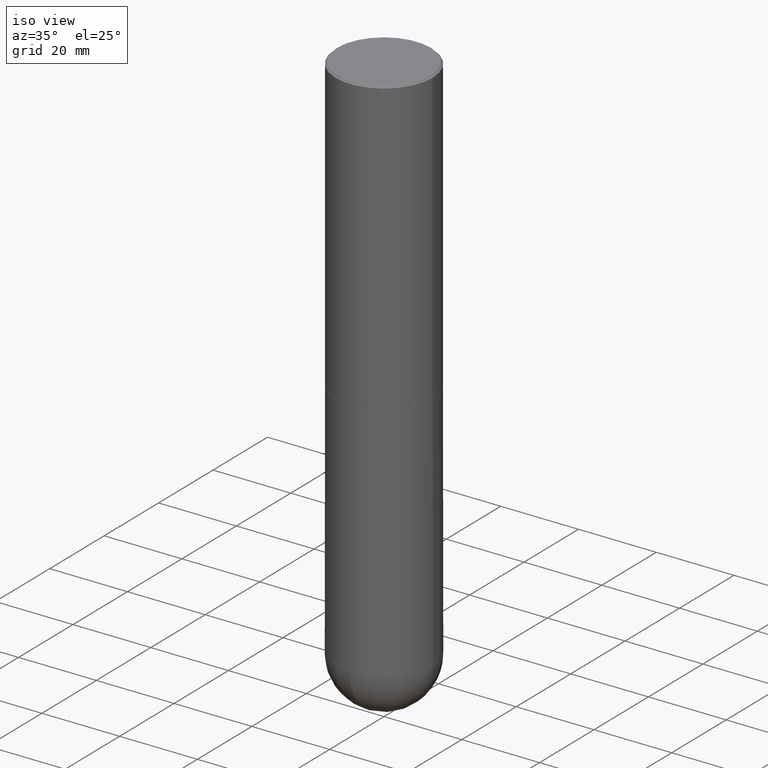
[diagram: clean part render]
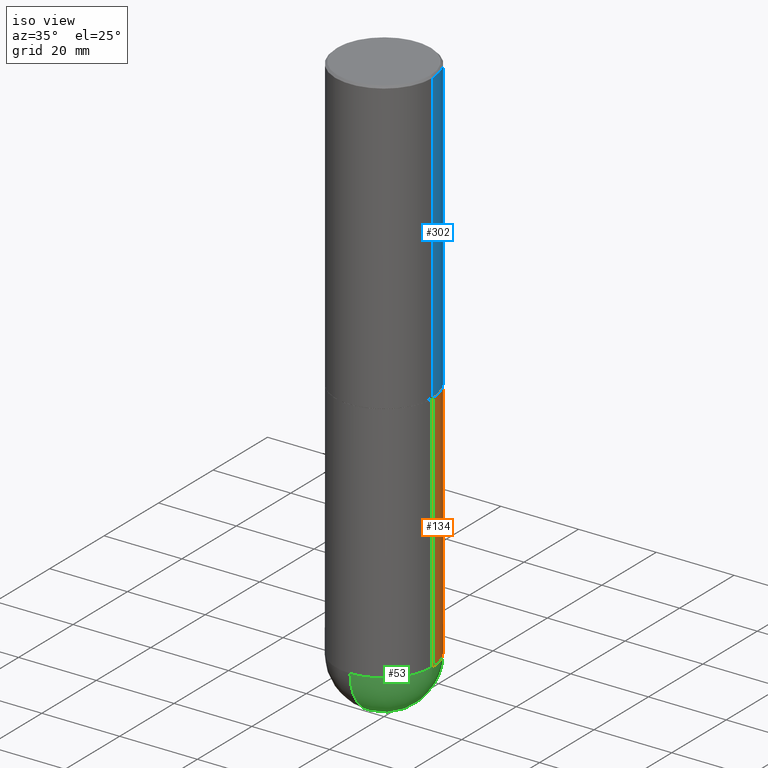
[diagram: same view with three faces highlighted in distinct colors, each labeled with its STEP entity id]
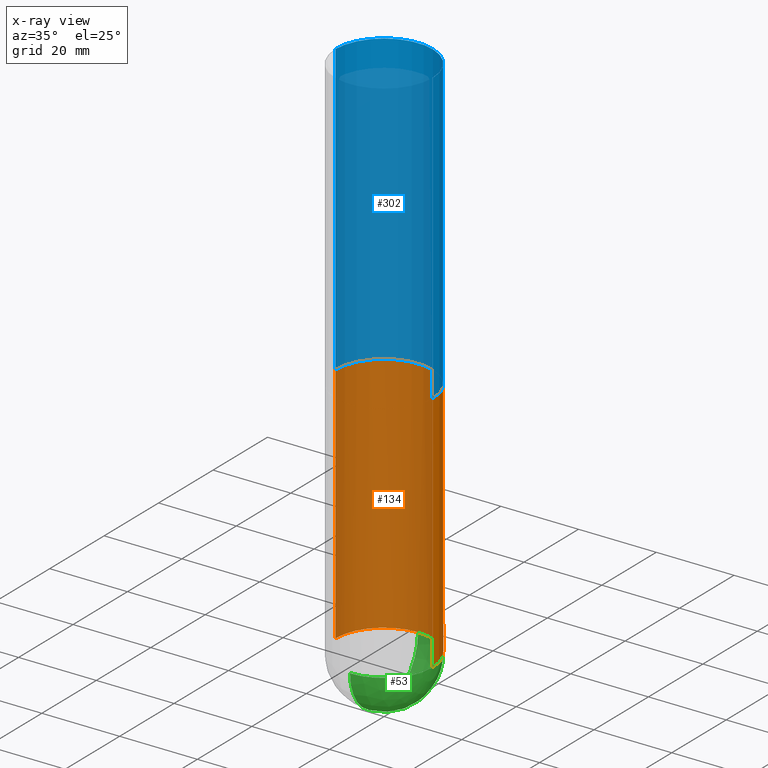
[diagram: x-ray of the same camera — body ghosted, the three highlighted faces saturated]
A machine part, iso view with three faces highlighted in distinct colors.
The next image is the same camera in x-ray (body ghosted, the three faces saturated) — at least one of them is partly hidden behind the body in this view.
Their STEP definitions:

[orange] entity #134 — the highlighted cylindrical surface (partial cylindrical patch) has radius 12.5006 mm, axis along (-0, 0, 1).
#5 = ORIENTED_EDGE ( 'NONE', *, *, #26, .T. ) ;
#26 = EDGE_CURVE ( 'NONE', #45, #273, #52, .T. ) ;
#35 = LINE ( 'NONE', #234, #224 ) ;
#38 = CARTESIAN_POINT ( 'NONE',  ( 3.436665081823426728E-15, 0.4921499999999808250, -5.413350000000002105 ) ) ;
#44 = EDGE_CURVE ( 'NONE', #307, #178, #60, .T. ) ;
#45 = VERTEX_POINT ( 'NONE', #255 ) ;
#48 = ORIENTED_EDGE ( 'NONE', *, *, #192, .F. ) ;
#52 = CIRCLE ( 'NONE', #98, 0.4921499999999999764 ) ;
#59 = CARTESIAN_POINT ( 'NONE',  ( -0.4921499999999999764, -1.110801765337101547E-14, -2.952700000000000102 ) ) ;
#60 = LINE ( 'NONE', #188, #287 ) ;
#91 = CARTESIAN_POINT ( 'NONE',  ( 1.323817856196230713E-28, -1.890061050562653856E-14, -5.413349999999999440 ) ) ;
#93 = DIRECTION ( 'NONE',  ( -2.445468806185136877E-29, 3.491481338843145188E-15, 1.000000000000000000 ) ) ;
#94 = DIRECTION ( 'NONE',  ( 1.000000000000000000, -6.982962677686265922E-15, 4.876176775795935793E-29 ) ) ;
#98 = AXIS2_PLACEMENT_3D ( 'NONE', #249, #393, #184 ) ;
#123 = EDGE_CURVE ( 'NONE', #273, #307, #412, .T. ) ;
#134 = ADVANCED_FACE ( 'NONE', ( #335 ), #277, .T. ) ;
#141 = VERTEX_POINT ( 'NONE', #392 ) ;
#165 = DIRECTION ( 'NONE',  ( -2.445468806185136877E-29, 3.491481338843145188E-15, 1.000000000000000000 ) ) ;
#178 = VERTEX_POINT ( 'NONE', #59 ) ;
#184 = DIRECTION ( 'NONE',  ( 1.000000000000000000, -6.982962677686265922E-15, 0.000000000000000000 ) ) ;
#185 = CARTESIAN_POINT ( 'NONE',  ( 0.000000000000000000, 0.000000000000000000, 0.000000000000000000 ) ) ;
#188 = CARTESIAN_POINT ( 'NONE',  ( -0.4921499999999999764, 3.496936074043332897E-15, -2.420853904668951509E-29 ) ) ;
#192 = EDGE_CURVE ( 'NONE', #45, #141, #35, .T. ) ;
#201 = EDGE_CURVE ( 'NONE', #141, #178, #213, .T. ) ;
#211 = DIRECTION ( 'NONE',  ( -2.445468806185136597E-29, 3.491481338843145583E-15, 1.000000000000000000 ) ) ;
#213 = CIRCLE ( 'NONE', #372, 0.4921499999999999764 ) ;
#224 = VECTOR ( 'NONE', #165, 39.37007874015748143 ) ;
#229 = CARTESIAN_POINT ( 'NONE',  ( 7.220735744022852519E-29, -1.030929694920215502E-14, -2.952700000000000102 ) ) ;
#234 = CARTESIAN_POINT ( 'NONE',  ( 0.4921499999999999764, -3.436665081823295777E-15, 2.399810400207969603E-29 ) ) ;
#249 = CARTESIAN_POINT ( 'NONE',  ( 1.323817856196230713E-28, -1.890061050562653856E-14, -5.413349999999999440 ) ) ;
#251 = DIRECTION ( 'NONE',  ( 1.000000000000000000, -6.982962677686265922E-15, 0.000000000000000000 ) ) ;
#255 = CARTESIAN_POINT ( 'NONE',  ( 0.4921499999999999764, -1.804161880923764651E-14, -5.413349999999999440 ) ) ;
#273 = VERTEX_POINT ( 'NONE', #38 ) ;
#277 = CYLINDRICAL_SURFACE ( 'NONE', #288, 0.4921499999999999764 ) ;
#287 = VECTOR ( 'NONE', #93, 39.37007874015748143 ) ;
#288 = AXIS2_PLACEMENT_3D ( 'NONE', #185, #338, #94 ) ;
#291 = DIRECTION ( 'NONE',  ( -2.445468806185136597E-29, 3.491481338843145583E-15, 1.000000000000000000 ) ) ;
#307 = VERTEX_POINT ( 'NONE', #388 ) ;
#311 = ORIENTED_EDGE ( 'NONE', *, *, #201, .F. ) ;
#323 = ORIENTED_EDGE ( 'NONE', *, *, #44, .T. ) ;
#335 = FACE_OUTER_BOUND ( 'NONE', #361, .T. ) ;
#338 = DIRECTION ( 'NONE',  ( -2.445468806185136597E-29, 3.491481338843145583E-15, 1.000000000000000000 ) ) ;
#340 = ORIENTED_EDGE ( 'NONE', *, *, #123, .T. ) ;
#343 = DIRECTION ( 'NONE',  ( 1.000000000000000000, -6.982962677686265922E-15, 0.000000000000000000 ) ) ;
#361 = EDGE_LOOP ( 'NONE', ( #340, #323, #311, #48, #5 ) ) ;
#372 = AXIS2_PLACEMENT_3D ( 'NONE', #229, #291, #343 ) ;
#380 = AXIS2_PLACEMENT_3D ( 'NONE', #91, #211, #251 ) ;
#388 = CARTESIAN_POINT ( 'NONE',  ( -0.4921499999999999764, -1.110801765337101862E-14, -5.413349999999999440 ) ) ;
#392 = CARTESIAN_POINT ( 'NONE',  ( 0.4921499999999999764, -1.374596203102545079E-14, -2.952700000000000102 ) ) ;
#393 = DIRECTION ( 'NONE',  ( -2.445468806185136597E-29, 3.491481338843145583E-15, 1.000000000000000000 ) ) ;
#412 = CIRCLE ( 'NONE', #380, 0.4921499999999999764 ) ;

[blue] entity #302 — the highlighted cylindrical surface (partial cylindrical patch) has radius 12.5006 mm, axis along (-0, 0, 1).
#10 = DIRECTION ( 'NONE',  ( -2.445468806185136877E-29, 3.491481338843145188E-15, 1.000000000000000000 ) ) ;
#14 = FACE_OUTER_BOUND ( 'NONE', #109, .T. ) ;
#18 = CYLINDRICAL_SURFACE ( 'NONE', #325, 0.4921500000000001984 ) ;
#24 = VERTEX_POINT ( 'NONE', #367 ) ;
#73 = DIRECTION ( 'NONE',  ( -2.445468806185136597E-29, 3.491481338843145583E-15, 1.000000000000000000 ) ) ;
#75 = AXIS2_PLACEMENT_3D ( 'NONE', #294, #73, #377 ) ;
#85 = CARTESIAN_POINT ( 'NONE',  ( 0.000000000000000000, 0.000000000000000000, 0.000000000000000000 ) ) ;
#88 = CIRCLE ( 'NONE', #75, 0.4921500000000003094 ) ;
#89 = VERTEX_POINT ( 'NONE', #283 ) ;
#92 = DIRECTION ( 'NONE',  ( -2.445468806185136877E-29, 3.491481338843145188E-15, 1.000000000000000000 ) ) ;
#109 = EDGE_LOOP ( 'NONE', ( #298, #397, #243, #365 ) ) ;
#113 = AXIS2_PLACEMENT_3D ( 'NONE', #261, #136, #258 ) ;
#125 = CARTESIAN_POINT ( 'NONE',  ( -0.4921500000000001984, 3.496936074043334475E-15, -2.420853904668952630E-29 ) ) ;
#136 = DIRECTION ( 'NONE',  ( -2.445468806185136597E-29, 3.491481338843145583E-15, 1.000000000000000000 ) ) ;
#148 = VECTOR ( 'NONE', #92, 39.37007874015748143 ) ;
#158 = CARTESIAN_POINT ( 'NONE',  ( -0.4921500000000003094, -1.690881473276752982E-15, -2.951700000000000212 ) ) ;
#179 = LINE ( 'NONE', #306, #223 ) ;
#195 = CIRCLE ( 'NONE', #113, 0.4921500000000000319 ) ;
#198 = VERTEX_POINT ( 'NONE', #158 ) ;
#207 = LINE ( 'NONE', #125, #148 ) ;
#209 = DIRECTION ( 'NONE',  ( -2.445468806185136597E-29, 3.491481338843145583E-15, 1.000000000000000000 ) ) ;
#223 = VECTOR ( 'NONE', #10, 39.37007874015748143 ) ;
#233 = EDGE_CURVE ( 'NONE', #198, #89, #207, .T. ) ;
#243 = ORIENTED_EDGE ( 'NONE', *, *, #407, .F. ) ;
#252 = EDGE_CURVE ( 'NONE', #24, #198, #88, .T. ) ;
#258 = DIRECTION ( 'NONE',  ( 1.000000000000000000, -6.982962677686265922E-15, 0.000000000000000000 ) ) ;
#261 = CARTESIAN_POINT ( 'NONE',  ( 4.890937612370299433E-31, -6.982962677686328587E-17, -0.02000000000000010797 ) ) ;
#283 = CARTESIAN_POINT ( 'NONE',  ( -0.4921500000000000319, 3.366835455046432873E-15, -0.02000000000000010797 ) ) ;
#294 = CARTESIAN_POINT ( 'NONE',  ( 7.218290275216666916E-29, -1.030580546786331359E-14, -2.951700000000000212 ) ) ;
#298 = ORIENTED_EDGE ( 'NONE', *, *, #252, .T. ) ;
#302 = ADVANCED_FACE ( 'NONE', ( #14 ), #18, .T. ) ;
#303 = VERTEX_POINT ( 'NONE', #376 ) ;
#306 = CARTESIAN_POINT ( 'NONE',  ( 0.4921500000000001984, -3.436665081823297354E-15, 2.399810400207970443E-29 ) ) ;
#318 = EDGE_CURVE ( 'NONE', #24, #303, #179, .T. ) ;
#325 = AXIS2_PLACEMENT_3D ( 'NONE', #85, #209, #328 ) ;
#328 = DIRECTION ( 'NONE',  ( 1.000000000000000000, -6.982962677686266711E-15, 4.876176775795935232E-29 ) ) ;
#365 = ORIENTED_EDGE ( 'NONE', *, *, #318, .F. ) ;
#367 = CARTESIAN_POINT ( 'NONE',  ( 0.4921500000000003094, -1.374247054968661252E-14, -2.951700000000000212 ) ) ;
#376 = CARTESIAN_POINT ( 'NONE',  ( 0.4921500000000000319, -3.446223716380123138E-15, -0.02000000000000010797 ) ) ;
#377 = DIRECTION ( 'NONE',  ( 1.000000000000000000, -6.982962677686265922E-15, 0.000000000000000000 ) ) ;
#397 = ORIENTED_EDGE ( 'NONE', *, *, #233, .T. ) ;
#407 = EDGE_CURVE ( 'NONE', #303, #89, #195, .T. ) ;

[green] entity #53 — the highlighted spherical surface has radius 12.5006 mm.
#11 = ORIENTED_EDGE ( 'NONE', *, *, #151, .T. ) ;
#20 = CARTESIAN_POINT ( 'NONE',  ( 1.290705878404842200E-28, -1.937479287376659043E-14, -5.413349999999999440 ) ) ;
#26 = EDGE_CURVE ( 'NONE', #45, #273, #52, .T. ) ;
#27 = DIRECTION ( 'NONE',  ( 1.000000000000000000, -6.982962677686265922E-15, 4.883557194083112340E-29 ) ) ;
#38 = CARTESIAN_POINT ( 'NONE',  ( 3.436665081823426728E-15, 0.4921499999999808250, -5.413350000000002105 ) ) ;
#45 = VERTEX_POINT ( 'NONE', #255 ) ;
#52 = CIRCLE ( 'NONE', #98, 0.4921499999999999764 ) ;
#53 = ADVANCED_FACE ( 'NONE', ( #280 ), #286, .T. ) ;
#58 = DIRECTION ( 'NONE',  ( 6.982962677686266711E-15, 1.000000000000000000, -4.440675393541420887E-15 ) ) ;
#62 = EDGE_CURVE ( 'NONE', #366, #45, #170, .T. ) ;
#98 = AXIS2_PLACEMENT_3D ( 'NONE', #249, #393, #184 ) ;
#114 = AXIS2_PLACEMENT_3D ( 'NONE', #312, #121, #399 ) ;
#118 = ORIENTED_EDGE ( 'NONE', *, *, #26, .F. ) ;
#121 = DIRECTION ( 'NONE',  ( -2.445468806185136597E-29, 3.491481338843145583E-15, 1.000000000000000000 ) ) ;
#129 = ORIENTED_EDGE ( 'NONE', *, *, #238, .F. ) ;
#131 = DIRECTION ( 'NONE',  ( -7.105427357601001070E-15, -1.000000000000000000, 0.000000000000000000 ) ) ;
#133 = CIRCLE ( 'NONE', #244, 0.4921500000000000874 ) ;
#145 = VERTEX_POINT ( 'NONE', #304 ) ;
#151 = EDGE_CURVE ( 'NONE', #145, #273, #133, .T. ) ;
#170 = CIRCLE ( 'NONE', #114, 0.4921499999999999764 ) ;
#180 = AXIS2_PLACEMENT_3D ( 'NONE', #402, #278, #58 ) ;
#184 = DIRECTION ( 'NONE',  ( 1.000000000000000000, -6.982962677686265922E-15, 0.000000000000000000 ) ) ;
#190 = CARTESIAN_POINT ( 'NONE',  ( 1.290705878404842200E-28, -1.937479287376659043E-14, -5.413349999999999440 ) ) ;
#200 = AXIS2_PLACEMENT_3D ( 'NONE', #190, #219, #131 ) ;
#215 = CARTESIAN_POINT ( 'NONE',  ( -3.496936074043201946E-15, -0.4921500000000192387, -5.413349999999997664 ) ) ;
#219 = DIRECTION ( 'NONE',  ( -1.000000000000000000, 7.105427357601001070E-15, -4.926315508542082329E-29 ) ) ;
#238 = EDGE_CURVE ( 'NONE', #145, #366, #266, .T. ) ;
#244 = AXIS2_PLACEMENT_3D ( 'NONE', #20, #27, #358 ) ;
#249 = CARTESIAN_POINT ( 'NONE',  ( 1.323817856196230713E-28, -1.890061050562653856E-14, -5.413349999999999440 ) ) ;
#255 = CARTESIAN_POINT ( 'NONE',  ( 0.4921499999999999764, -1.804161880923764651E-14, -5.413349999999999440 ) ) ;
#265 = EDGE_LOOP ( 'NONE', ( #129, #11, #118, #336 ) ) ;
#266 = CIRCLE ( 'NONE', #200, 0.4921500000000000874 ) ;
#273 = VERTEX_POINT ( 'NONE', #38 ) ;
#278 = DIRECTION ( 'NONE',  ( -1.000000000000000000, 6.982962677686266711E-15, -4.883557194083112901E-29 ) ) ;
#280 = FACE_OUTER_BOUND ( 'NONE', #265, .T. ) ;
#286 = SPHERICAL_SURFACE ( 'NONE', #180, 0.4921500000000000874 ) ;
#304 = CARTESIAN_POINT ( 'NONE',  ( 1.413163976147341948E-28, -2.106298991856822883E-14, -5.905499999999999972 ) ) ;
#312 = CARTESIAN_POINT ( 'NONE',  ( 1.323817856196230713E-28, -1.890061050562653856E-14, -5.413349999999999440 ) ) ;
#336 = ORIENTED_EDGE ( 'NONE', *, *, #62, .F. ) ;
#358 = DIRECTION ( 'NONE',  ( 6.982962677686265922E-15, 1.000000000000000000, 0.000000000000000000 ) ) ;
#366 = VERTEX_POINT ( 'NONE', #215 ) ;
#393 = DIRECTION ( 'NONE',  ( -2.445468806185136597E-29, 3.491481338843145583E-15, 1.000000000000000000 ) ) ;
#399 = DIRECTION ( 'NONE',  ( 1.000000000000000000, -6.982962677686265922E-15, 0.000000000000000000 ) ) ;
#402 = CARTESIAN_POINT ( 'NONE',  ( 1.290705878404842200E-28, -1.937479287376659043E-14, -5.413349999999999440 ) ) ;